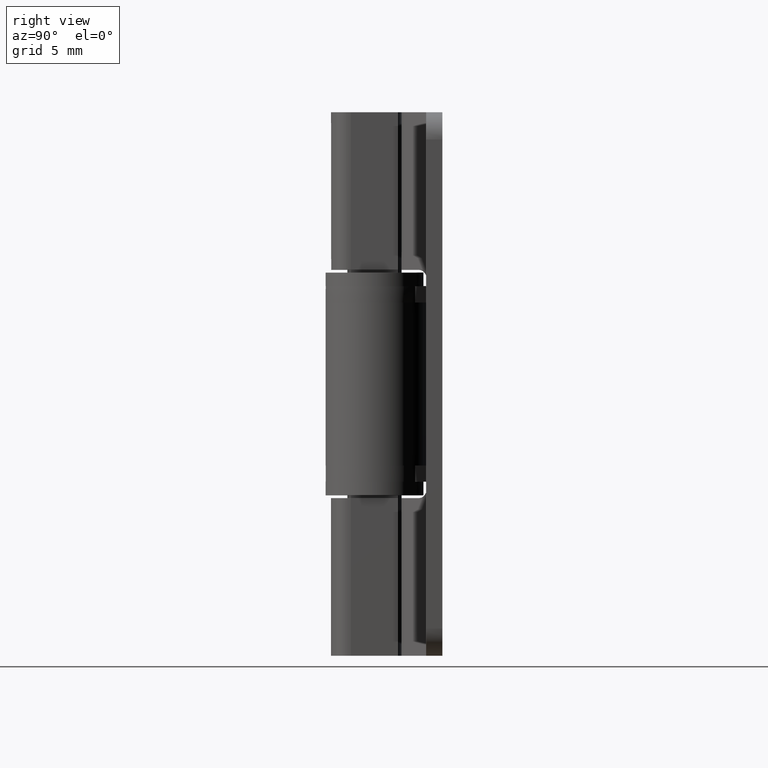
[diagram: clean part render]
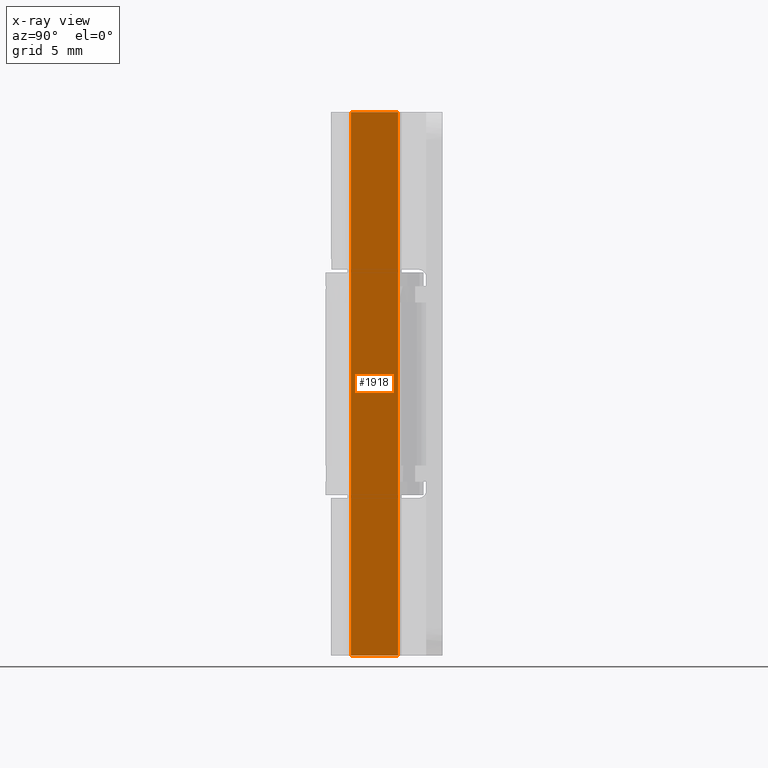
[diagram: x-ray — body ghosted, one internal face saturated and labeled with its STEP entity id]
A machine part, right view, then the same camera in x-ray: the body is ghosted and one INTERNAL B-rep face — a face not visible from any outside direction — is saturated and labeled: STEP entity #1918.
In plain terms, the highlighted face is a freeform B-spline surface patch.
Its self-contained STEP definition (entity closure, byte-faithful):
#1788=CARTESIAN_POINT('',(1.0,1.732050807568875,40.0));
#1789=VERTEX_POINT('',#1788);
#1790=CARTESIAN_POINT('',(1.0,-1.732050807568875,40.0));
#1791=VERTEX_POINT('',#1790);
#1792=CARTESIAN_POINT('',(1.0,1.732050807568875,40.0));
#1793=CARTESIAN_POINT('',(1.0,-1.732050807568875,40.0));
#1794=QUASI_UNIFORM_CURVE('',1,(#1792,#1793),.UNSPECIFIED.,.F.,.U.);
#1795=EDGE_CURVE('',#1789,#1791,#1794,.T.);
#1832=CARTESIAN_POINT('',(1.0,1.732050807568875,0.0));
#1833=VERTEX_POINT('',#1832);
#1834=CARTESIAN_POINT('',(1.0,-1.732050807568875,0.0));
#1835=VERTEX_POINT('',#1834);
#1836=CARTESIAN_POINT('',(1.0,1.732050807568875,0.0));
#1837=CARTESIAN_POINT('',(1.0,-1.732050807568875,0.0));
#1838=QUASI_UNIFORM_CURVE('',1,(#1836,#1837),.UNSPECIFIED.,.F.,.U.);
#1839=EDGE_CURVE('',#1833,#1835,#1838,.T.);
#1893=CARTESIAN_POINT('',(1.0,1.732050807568875,0.0));
#1894=CARTESIAN_POINT('',(1.0,1.732050807568875,40.0));
#1895=QUASI_UNIFORM_CURVE('',1,(#1893,#1894),.UNSPECIFIED.,.F.,.U.);
#1896=EDGE_CURVE('',#1833,#1789,#1895,.T.);
#1899=CARTESIAN_POINT('',(1.0,-1.732050807568875,0.0));
#1900=CARTESIAN_POINT('',(1.0,-1.732050807568875,40.0));
#1901=QUASI_UNIFORM_CURVE('',1,(#1899,#1900),.UNSPECIFIED.,.F.,.U.);
#1902=EDGE_CURVE('',#1835,#1791,#1901,.T.);
#1907=CARTESIAN_POINT('',(1.0,-1.905082676530904,-1.997999922472239));
#1908=CARTESIAN_POINT('',(1.0,-1.905082676530904,41.998000995355838));
#1909=CARTESIAN_POINT('',(1.0,1.905082769445350,-1.997999922472239));
#1910=CARTESIAN_POINT('',(1.0,1.905082769445350,41.998000995355838));
#1911=B_SPLINE_SURFACE_WITH_KNOTS('',1,1,((#1907,#1909),(#1908,#1910)),.UNSPECIFIED.,.F.,.F.,.U.,(2,2),(2,2),(0.0,43.996000917828077),(0.0,3.810165445976255),.UNSPECIFIED.);
#1912=ORIENTED_EDGE('',*,*,#1795,.T.);
#1913=ORIENTED_EDGE('',*,*,#1902,.F.);
#1914=ORIENTED_EDGE('',*,*,#1839,.F.);
#1915=ORIENTED_EDGE('',*,*,#1896,.T.);
#1916=EDGE_LOOP('',(#1912,#1913,#1914,#1915));
#1917=FACE_OUTER_BOUND('',#1916,.T.);
#1918=ADVANCED_FACE('',(#1917),#1911,.F.);